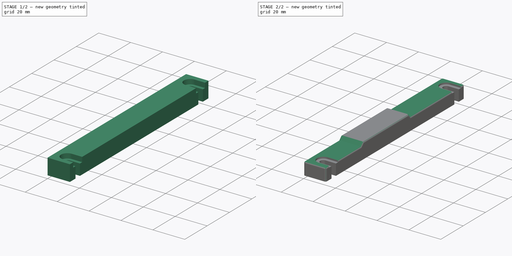
[diagram: build sequence overview — one tinted view per stage of 2, left to right]
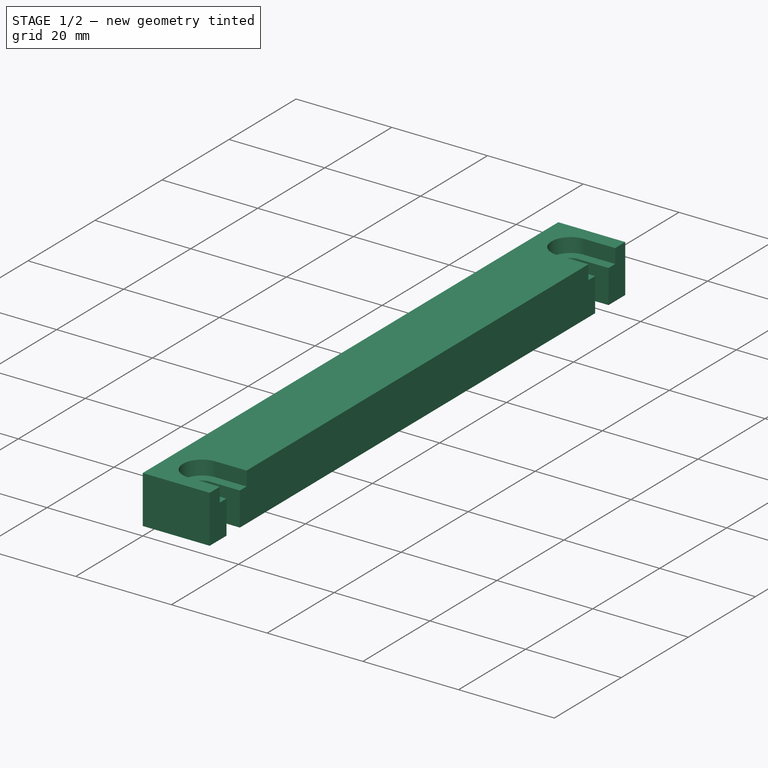
[diagram: stage 1 of 2 — iso view after this stage's code; geometry added in this stage tinted green]
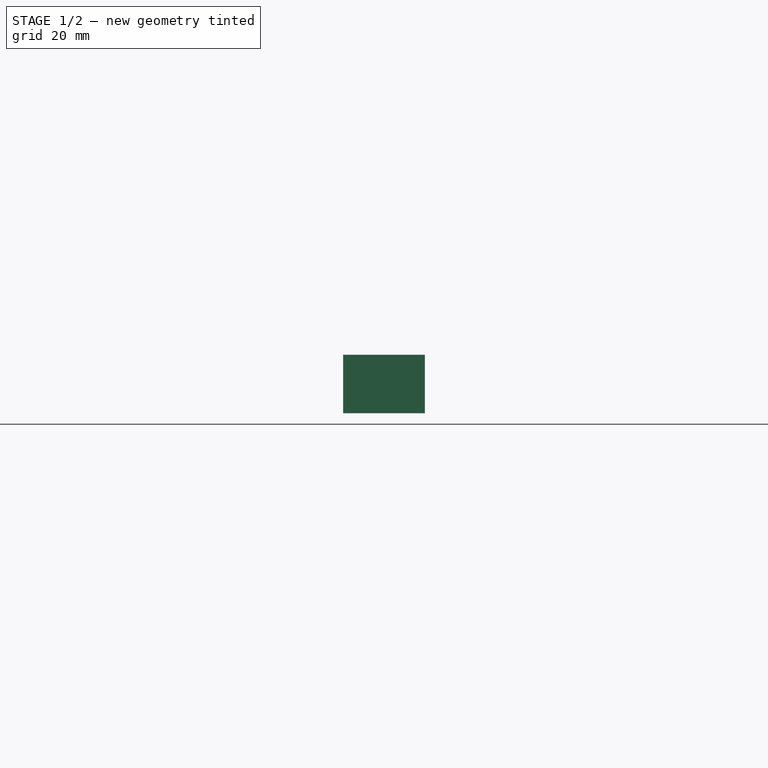
[diagram: stage 1 of 2 — front view after this stage's code; geometry added in this stage tinted green]
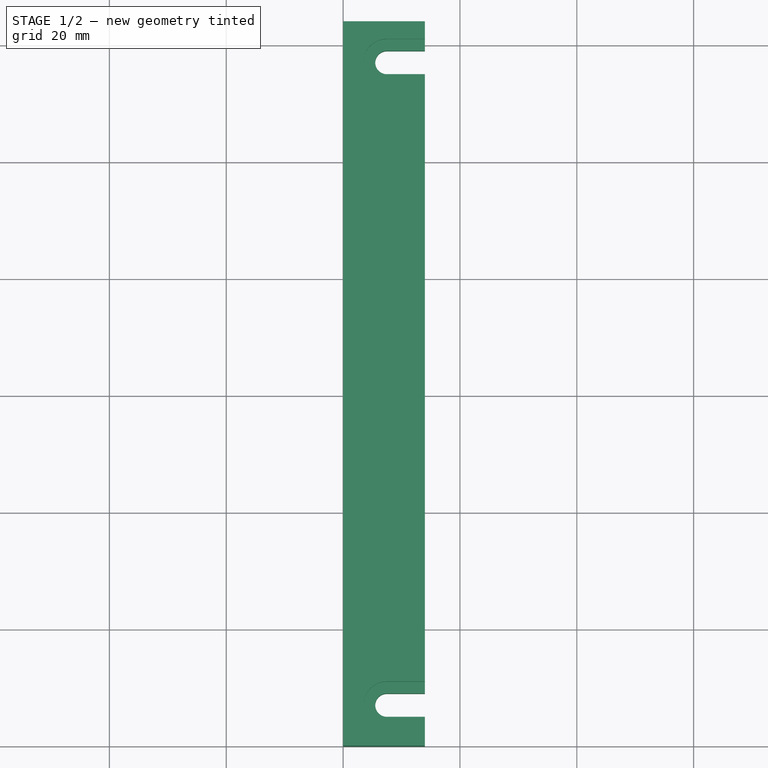
[diagram: stage 1 of 2 — top view after this stage's code; geometry added in this stage tinted green]
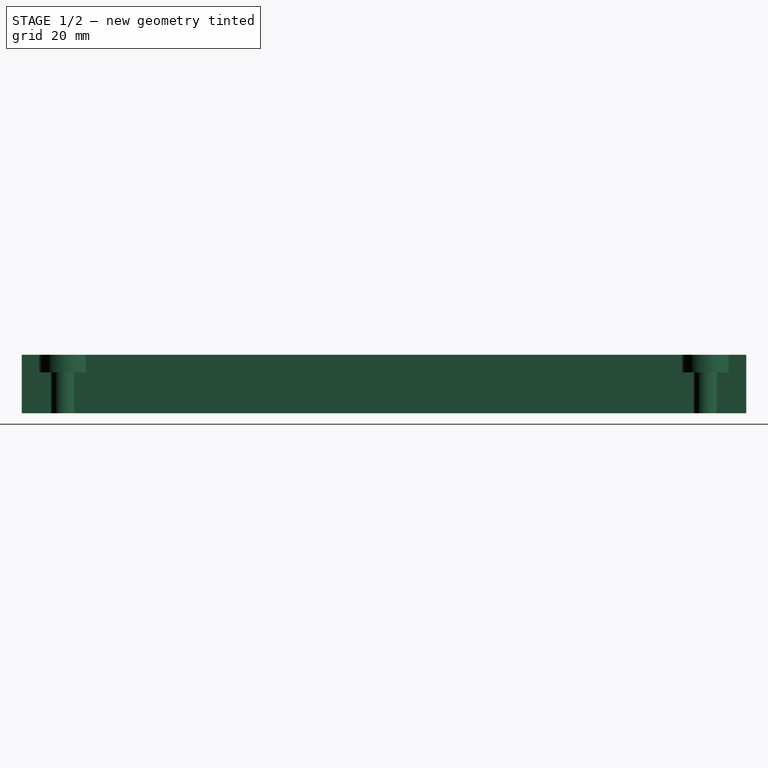
[diagram: stage 1 of 2 — right view after this stage's code; geometry added in this stage tinted green]
FCSTD DOCUMENT  (FreeCAD 0.17R13662 (Git))
Label: auxilary_bed_mount_cover
License: CreativeCommons Attribution-ShareAlike
LicenseURL: http://creativecommons.org/licenses/by-sa/4.0/
objects: Sketcher::SketchObject×3, PartDesign::Pocket×2, PartDesign::Pad×1, PartDesign::Fillet×1, PartDesign::Body×1
note: 11 computed .brp shape members not serialized (recipe doc carries the construction recipe); baked Part::Feature solids carry a one-line shape summary decoded from their .brp

FEATURE [Sketcher::SketchObject] Sketch
  MapMode = 5
  Support = -> [XY_Plane]
  sketch-geometry (16):
    g0: LineSegment StartX=0 StartY=0 StartZ=0 EndX=14 EndY=0 EndZ=0
    g1: LineSegment StartX=14 StartY=0 StartZ=0 EndX=14 EndY=5 EndZ=0
    g2: LineSegment StartX=14 StartY=124 StartZ=0 EndX=0 EndY=124 EndZ=0
    g3: LineSegment StartX=0 StartY=124 StartZ=0 EndX=0 EndY=0 EndZ=0
    g4: Circle [constr] CenterX=7.5 CenterY=7 CenterZ=0 NormalX=0 NormalY=0 NormalZ=1 AngleXU=0 Radius=2
    g5: Circle [constr] CenterX=7.5 CenterY=117 CenterZ=0 NormalX=0 NormalY=0 NormalZ=1 AngleXU=0 Radius=2
    g6: ArcOfCircle CenterX=7.5 CenterY=117 CenterZ=0 NormalX=0 NormalY=0 NormalZ=1 AngleXU=0 Radius=2 StartAngle=1.5708 EndAngle=4.71239
    g7: ArcOfCircle CenterX=7.5 CenterY=7 CenterZ=0 NormalX=0 NormalY=0 NormalZ=1 AngleXU=0 Radius=2 StartAngle=1.5708 EndAngle=4.71239
    g8: LineSegment StartX=7.5 StartY=9 StartZ=0 EndX=14 EndY=9 EndZ=0
    g9: LineSegment StartX=14 StartY=5 StartZ=0 EndX=7.5 EndY=5 EndZ=0
    g10: LineSegment [constr] StartX=7.5 StartY=5 StartZ=0 EndX=7.5 EndY=9 EndZ=0
    g11: LineSegment StartX=7.5 StartY=119 StartZ=0 EndX=14 EndY=119 EndZ=0
    g12: LineSegment StartX=14 StartY=115 StartZ=0 EndX=7.5 EndY=115 EndZ=0
    g13: LineSegment [constr] StartX=7.5 StartY=115 StartZ=0 EndX=7.5 EndY=119 EndZ=0
    g14: LineSegment StartX=14 StartY=9 StartZ=0 EndX=14 EndY=115 EndZ=0
    g15: LineSegment StartX=14 StartY=119 StartZ=0 EndX=14 EndY=124 EndZ=0
  constraints (48):
    c: Coincident(g0,g1)
    c: Coincident(g15,g2)
    c: Coincident(g2,g3)
    c: Coincident(g3,g0)
    c: Horizontal(g0)
    c: Horizontal(g2)
    c: Vertical(g1)
    c: Vertical(g3)
    c: Coincident(g0,g-1)
    c: DistanceX(g5,g4) = 0
    c: DistanceY(g5,g4) = -110
    c: DistanceX(g4) = 7.5
    c: DistanceX(g0,g0) = 14
    c: DistanceY(g4) = 7
    c: DistanceY(g5,g15) = 7
    c: Radius(g5) = 2
    c: Equal(g5,g4)
    c: Coincident(g9,g10)
    c: Coincident(g10,g8)
    c: Horizontal(g8)
    c: Horizontal(g9)
    c: Vertical(g10)
    c: Coincident(g7,g8)
    c: Coincident(g7,g9)
    c: PointOnObject(g4,g10)
    c: Equal(g7,g4)
    c: Coincident(g4,g7)
    c: Coincident(g12,g13)
    c: Coincident(g13,g11)
    c: Horizontal(g11)
    c: Horizontal(g12)
    c: Vertical(g13)
    c: PointOnObject(g12,g1)
    c: Coincident(g6,g11)
    c: Coincident(g6,g12)
    c: PointOnObject(g5,g13)
    c: PointOnObject(g1,g9)
    c: Coincident(g14,g8)
    c: Tangent(g1,g14)
    c: Coincident(g1,g9)
    c: Equal(g9,g8)
    c: PointOnObject(g14,g12)
    c: PointOnObject(g15,g11)
    c: Tangent(g14,g15)
    c: Coincident(g11,g15)
    c: Equal(g12,g11)
    c: Equal(g6,g5)
    c: Coincident(g5,g6)
FEATURE [PartDesign::Pad] Pad
  Length = 10
  Length2 = 100
  Profile = -> Sketch
  Type = 0
FEATURE [Sketcher::SketchObject] Sketch001
  MapMode = 5
  Placement = pos=(0,0,10) rot=(0,0,1;0rad)
  Support = -> [Pad]
  sketch-geometry (10):
    g0: ArcOfCircle CenterX=7.5 CenterY=7 CenterZ=0 NormalX=0 NormalY=0 NormalZ=1 AngleXU=0 Radius=4 StartAngle=1.5708 EndAngle=4.71239
    g1: LineSegment StartX=7.5 StartY=11 StartZ=0 EndX=16 EndY=11 EndZ=0
    g2: LineSegment StartX=16 StartY=11 StartZ=0 EndX=16 EndY=3 EndZ=0
    g3: LineSegment StartX=16 StartY=3 StartZ=0 EndX=7.5 EndY=3 EndZ=0
    g4: LineSegment [constr] StartX=7.5 StartY=3 StartZ=0 EndX=7.5 EndY=11 EndZ=0
    g5: ArcOfCircle CenterX=7.5 CenterY=117 CenterZ=0 NormalX=0 NormalY=0 NormalZ=1 AngleXU=0 Radius=4 StartAngle=1.5708 EndAngle=4.71239
    g6: LineSegment StartX=7.5 StartY=121 StartZ=0 EndX=16 EndY=121 EndZ=0
    g7: LineSegment StartX=16 StartY=121 StartZ=0 EndX=16 EndY=113 EndZ=0
    g8: LineSegment StartX=16 StartY=113 StartZ=0 EndX=7.5 EndY=113 EndZ=0
    g9: LineSegment [constr] StartX=7.5 StartY=113 StartZ=0 EndX=7.5 EndY=121 EndZ=0
  constraints (30):
    c: Coincident(g1,g2)
    c: Coincident(g2,g3)
    c: Coincident(g3,g4)
    c: Coincident(g4,g1)
    c: Horizontal(g1)
    c: Horizontal(g3)
    c: Vertical(g2)
    c: Vertical(g4)
    c: Coincident(g0,g3)
    c: Coincident(g0,g1)
    c: PointOnObject(g0,g4)
    c: DistanceX(g0) = 7.5
    c: DistanceY(g0) = 7
    c: Radius(g0) = 4
    c: DistanceX(g1,g1) = 8.5
    c: Coincident(g6,g7)
    c: Coincident(g7,g8)
    c: Coincident(g8,g9)
    c: Coincident(g9,g6)
    c: Horizontal(g6)
    c: Horizontal(g8)
    c: Vertical(g7)
    c: Vertical(g9)
    c: Coincident(g5,g8)
    c: Coincident(g5,g6)
    c: PointOnObject(g5,g9)
    c: Equal(g0,g5) = 4
    c: Equal(g1,g6) = 8.5
    c: DistanceX(g5,g0) = 0
    c: DistanceY(g5,g0) = -110
FEATURE [PartDesign::Pocket] Pocket
  BaseFeature = -> Pad
  Length = 3
  Length2 = 100
  Profile = -> Sketch001
  Type = 0
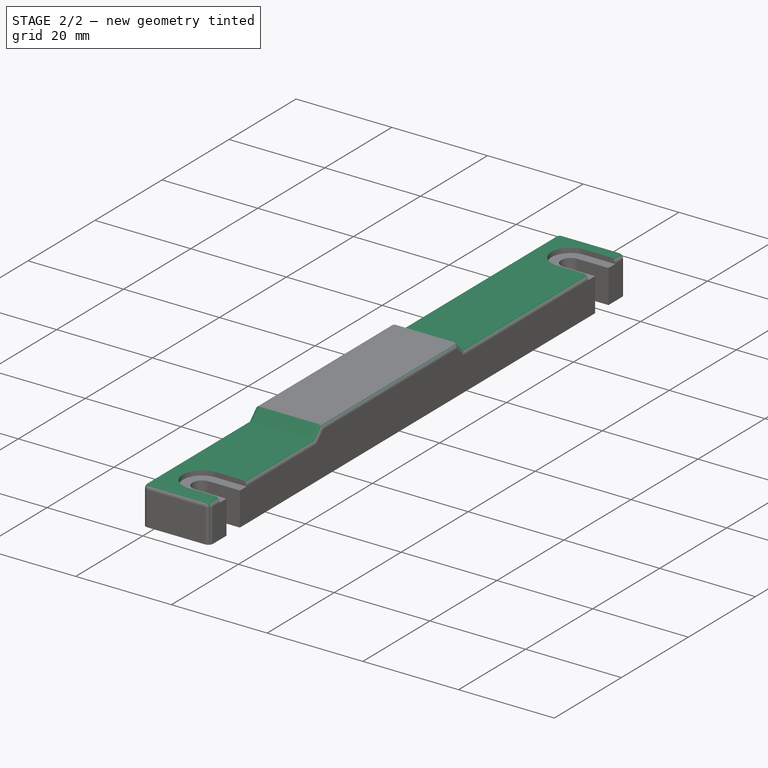
[diagram: stage 2 of 2 — iso view after this stage's code; geometry added in this stage tinted green]
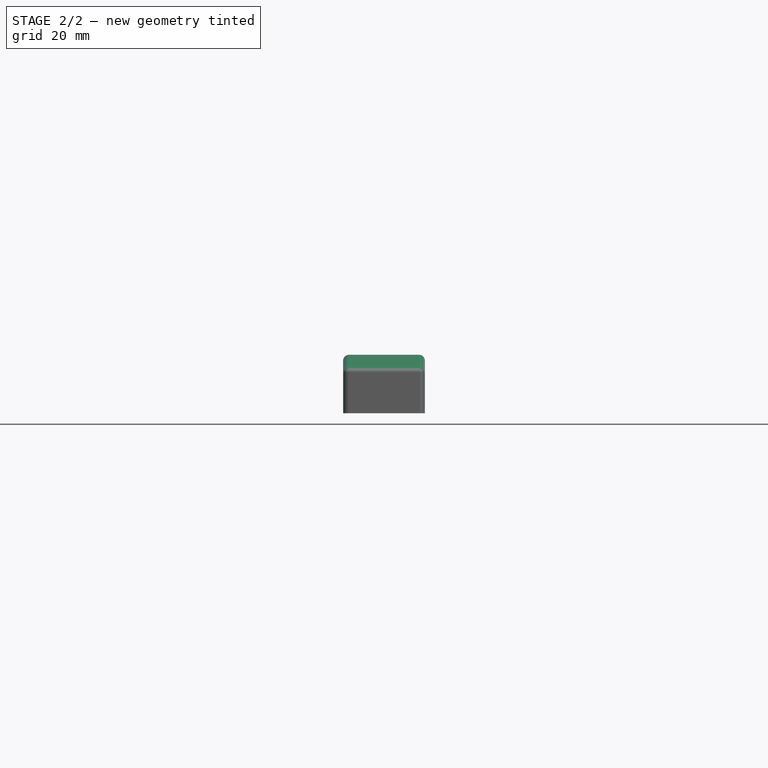
[diagram: stage 2 of 2 — front view after this stage's code; geometry added in this stage tinted green]
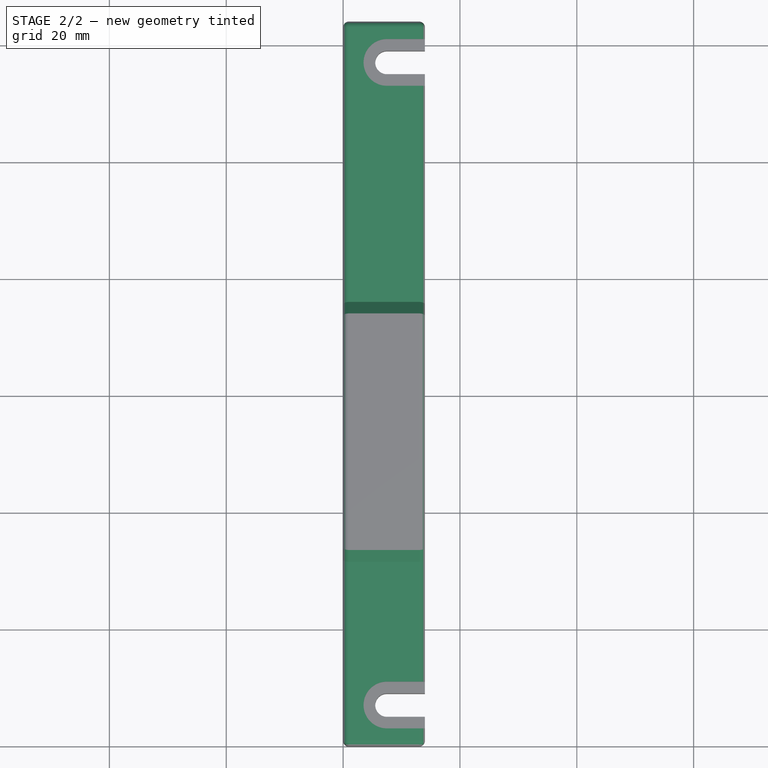
[diagram: stage 2 of 2 — top view after this stage's code; geometry added in this stage tinted green]
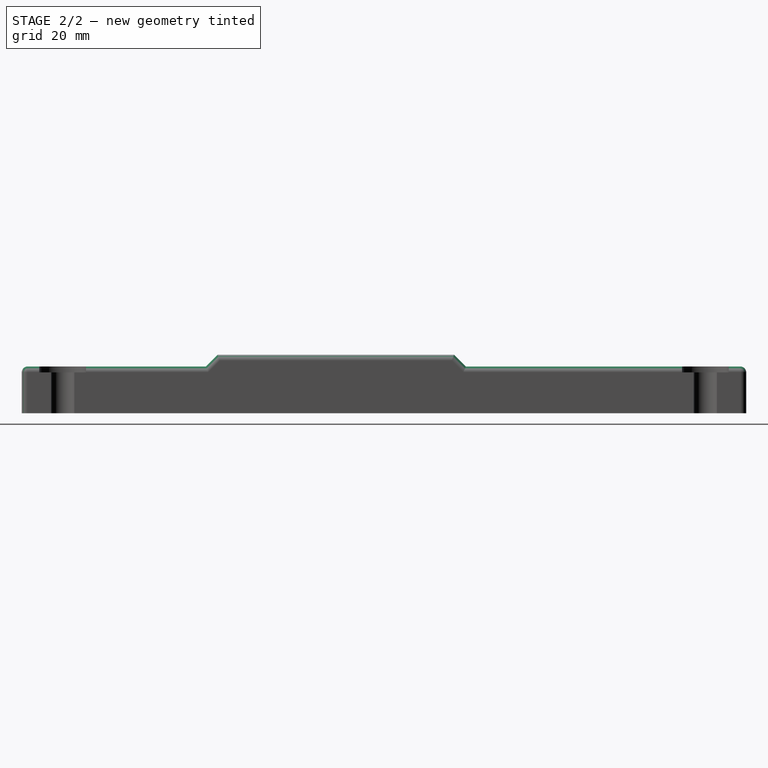
[diagram: stage 2 of 2 — right view after this stage's code; geometry added in this stage tinted green]
FEATURE [Sketcher::SketchObject] Sketch002
  MapMode = 5
  Placement = pos=(0,0,0) rot=(0.57735,-0.57735,-0.57735;2.0944rad)
  Support = -> [Pocket]
  sketch-geometry (8):
    g0: LineSegment StartX=-124 StartY=8 StartZ=0 EndX=-76 EndY=8 EndZ=0
    g1: LineSegment StartX=-76 StartY=8 StartZ=0 EndX=-74 EndY=10 EndZ=0
    g2: LineSegment StartX=-74 StartY=10 StartZ=0 EndX=-124 EndY=10 EndZ=0
    g3: LineSegment StartX=-124 StartY=10 StartZ=0 EndX=-124 EndY=8 EndZ=0
    g4: LineSegment StartX=0 StartY=10 StartZ=0 EndX=-33.5 EndY=10 EndZ=0
    g5: LineSegment StartX=-33.5 StartY=10 StartZ=0 EndX=-31.5 EndY=8 EndZ=0
    g6: LineSegment StartX=-31.5 StartY=8 StartZ=0 EndX=0 EndY=8 EndZ=0
    g7: LineSegment StartX=0 StartY=8 StartZ=0 EndX=0 EndY=10 EndZ=0
  constraints (24):
    c: Coincident(g0,g1)
    c: Coincident(g1,g2)
    c: Coincident(g2,g3)
    c: Coincident(g3,g0)
    c: Coincident(g4,g5)
    c: Coincident(g5,g6)
    c: Coincident(g6,g7)
    c: Coincident(g4,g7)
    c: Vertical(g3)
    c: Vertical(g7)
    c: Horizontal(g6)
    c: Horizontal(g0)
    c: Horizontal(g2)
    c: Horizontal(g4)
    c: Angle(g5) = -0.785398
    c: Angle(g1) = 0.785398
    c: PointOnObject(g4,g-2)
    c: DistanceY(g4) = 10
    c: DistanceY(g7,g7) = 2
    c: PointOnObject(g1,g4)
    c: DistanceX(g0) = -124
    c: Equal(g1,g5)
    c: DistanceX(g2,g2) = 50
    c: DistanceX(g4,g4) = 33.5
FEATURE [PartDesign::Pocket] Pocket001
  BaseFeature = -> Pocket
  Length = 5
  Length2 = 100
  Profile = -> Sketch002
  Type = 1
FEATURE [PartDesign::Fillet] Fillet
  Base = -> Pocket001 [Edge32,Edge33,Edge31,Edge52,Edge51,Edge50,Edge49,Edge34,Edge17,Edge28,Edge27,Edge16,Edge30,Edge53,Edge40,Edge36,Edge29,Edge35]
  BaseFeature = -> Pocket001
  Radius = 1
FEATURE [PartDesign::Body] Body
  Group = -> [Sketch,Pad,Sketch001,Pocket,Sketch002,Pocket001,Fillet]
  Origin = -> Origin
  Tip = -> Fillet
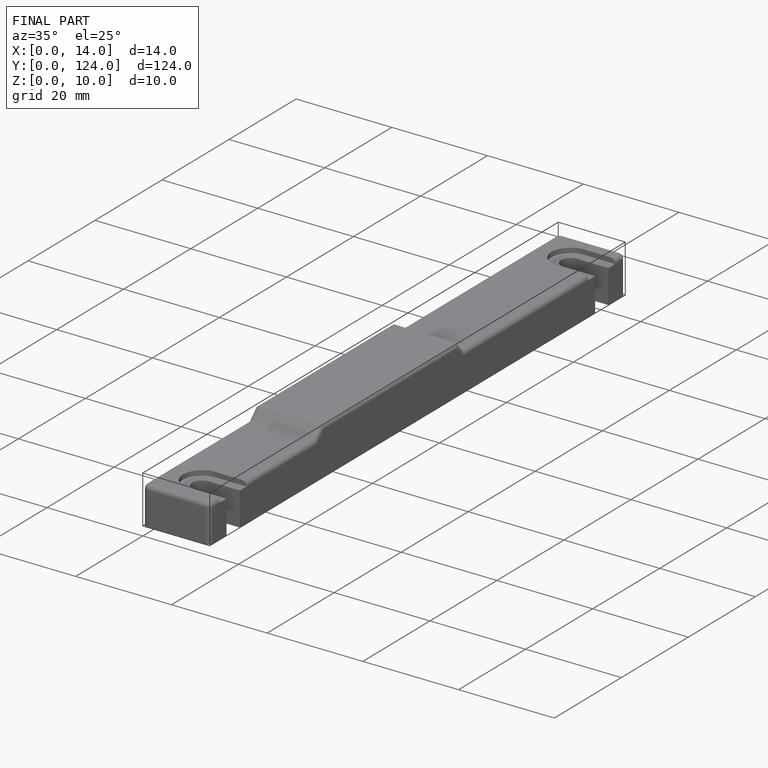
[diagram: finished part — iso view with bounding-box wireframe]
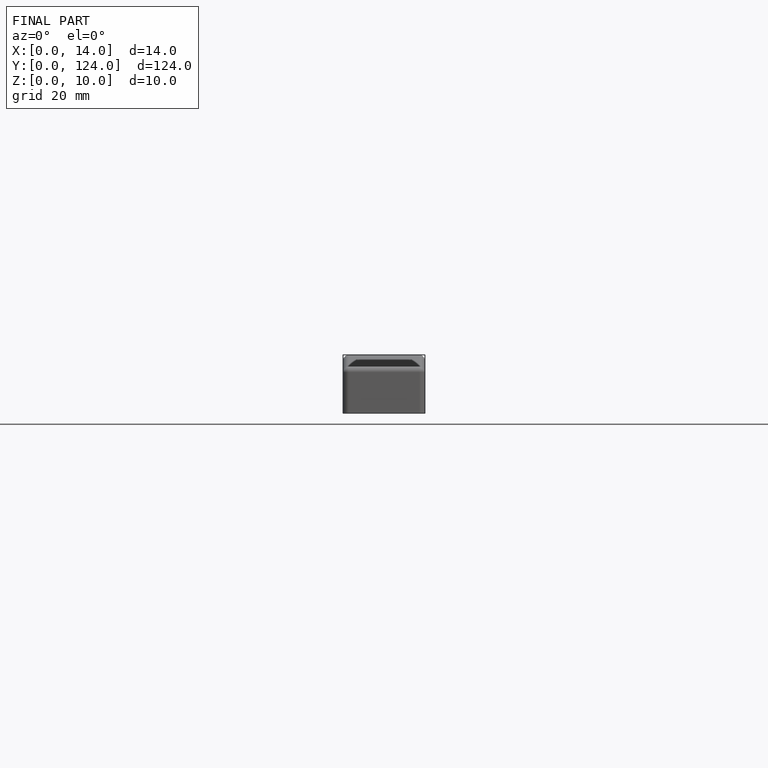
[diagram: finished part — front view with bounding-box wireframe]
